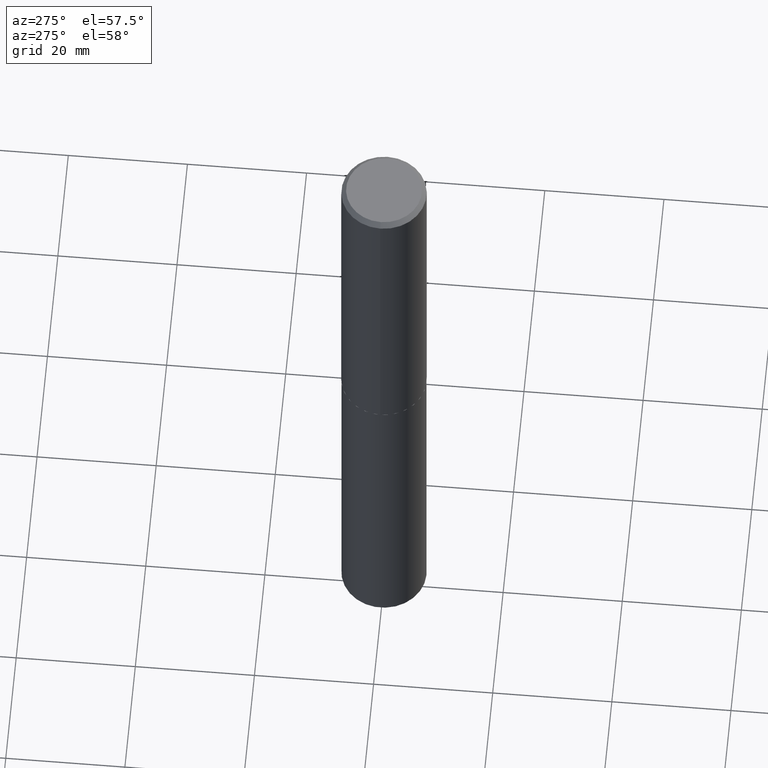
[diagram: clean part render]
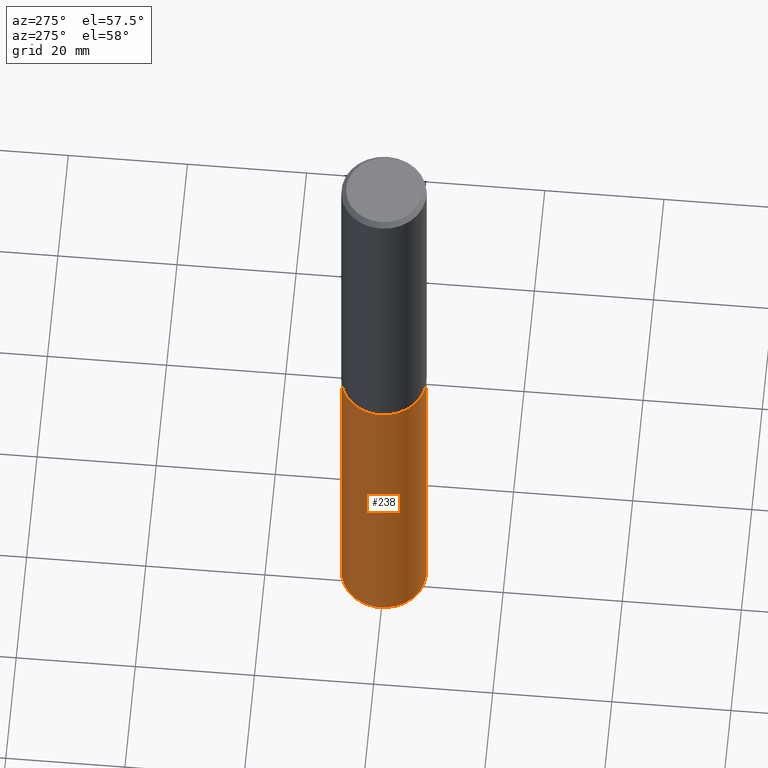
[diagram: same view with one face highlighted and labeled with its STEP entity id]
A machine part, auxiliary view. The second image highlights one B-rep face of the part: STEP entity #238.
In plain terms, the highlighted cylindrical surface (partial cylindrical patch) has radius 7.1437 mm, axis along (-0, 0, 1).
Its self-contained STEP definition (entity closure, byte-faithful):
#8 = LINE ( 'NONE', #282, #169 ) ;
#13 = VERTEX_POINT ( 'NONE', #80 ) ;
#15 = VERTEX_POINT ( 'NONE', #199 ) ;
#28 = ORIENTED_EDGE ( 'NONE', *, *, #97, .T. ) ;
#29 = DIRECTION ( 'NONE',  ( -6.982962677686266711E-15, -1.000000000000000000, 3.885294924322507688E-15 ) ) ;
#40 = CIRCLE ( 'NONE', #267, 0.2812500000000000000 ) ;
#50 = FACE_OUTER_BOUND ( 'NONE', #198, .T. ) ;
#71 = CYLINDRICAL_SURFACE ( 'NONE', #333, 0.2812500000000000000 ) ;
#73 = EDGE_CURVE ( 'NONE', #150, #13, #191, .T. ) ;
#80 = CARTESIAN_POINT ( 'NONE',  ( 1.998401444325396158E-15, 0.2812499999999919509, -2.312500000000000888 ) ) ;
#91 = CARTESIAN_POINT ( 'NONE',  ( 1.998401444325338176E-15, 0.2812499999999919509, -2.312500000000000888 ) ) ;
#97 = EDGE_CURVE ( 'NONE', #150, #236, #280, .T. ) ;
#108 = ORIENTED_EDGE ( 'NONE', *, *, #109, .F. ) ;
#109 = EDGE_CURVE ( 'NONE', #13, #15, #40, .T. ) ;
#110 = DIRECTION ( 'NONE',  ( -6.982962677686266711E-15, -1.000000000000000000, 3.885294924322507688E-15 ) ) ;
#116 = DIRECTION ( 'NONE',  ( -2.447055092570112405E-29, 3.489209686454046376E-15, 1.000000000000000000 ) ) ;
#126 = CARTESIAN_POINT ( 'NONE',  ( 1.143543159234910269E-28, -1.631604988620107915E-14, -4.674639289628747640 ) ) ;
#150 = VERTEX_POINT ( 'NONE', #340 ) ;
#163 = CARTESIAN_POINT ( 'NONE',  ( 5.655146614303128380E-29, -8.074050596074775072E-15, -2.312500000000000000 ) ) ;
#169 = VECTOR ( 'NONE', #366, 39.37007874015748143 ) ;
#191 = LINE ( 'NONE', #91, #232 ) ;
#198 = EDGE_LOOP ( 'NONE', ( #346, #28, #360, #108 ) ) ;
#199 = CARTESIAN_POINT ( 'NONE',  ( -1.963958253099205714E-15, -0.2812500000000080491, -2.312499999999999112 ) ) ;
#206 = EDGE_CURVE ( 'NONE', #236, #15, #8, .T. ) ;
#211 = CARTESIAN_POINT ( 'NONE',  ( 5.655146614303128380E-29, -8.074050596074775072E-15, -2.312500000000000000 ) ) ;
#224 = CARTESIAN_POINT ( 'NONE',  ( -1.963958253099148128E-15, -0.2812500000000163203, -4.674639289628746752 ) ) ;
#232 = VECTOR ( 'NONE', #308, 39.37007874015748143 ) ;
#236 = VERTEX_POINT ( 'NONE', #224 ) ;
#238 = ADVANCED_FACE ( 'NONE', ( #50 ), #71, .T. ) ;
#250 = DIRECTION ( 'NONE',  ( -6.982962677686266711E-15, -1.000000000000000000, 3.885294924322507688E-15 ) ) ;
#262 = AXIS2_PLACEMENT_3D ( 'NONE', #126, #116, #29 ) ;
#267 = AXIS2_PLACEMENT_3D ( 'NONE', #211, #315, #250 ) ;
#280 = CIRCLE ( 'NONE', #262, 0.2812500000000000000 ) ;
#282 = CARTESIAN_POINT ( 'NONE',  ( -1.963958253099205714E-15, -0.2812500000000080491, -2.312499999999999112 ) ) ;
#308 = DIRECTION ( 'NONE',  ( -2.447055092570112405E-29, 3.489209686454046771E-15, 1.000000000000000000 ) ) ;
#315 = DIRECTION ( 'NONE',  ( -2.447055092570112405E-29, 3.489209686454046376E-15, 1.000000000000000000 ) ) ;
#333 = AXIS2_PLACEMENT_3D ( 'NONE', #163, #371, #110 ) ;
#340 = CARTESIAN_POINT ( 'NONE',  ( 1.998401444325395763E-15, 0.2812499999999836242, -4.674639289628748529 ) ) ;
#346 = ORIENTED_EDGE ( 'NONE', *, *, #73, .F. ) ;
#360 = ORIENTED_EDGE ( 'NONE', *, *, #206, .T. ) ;
#366 = DIRECTION ( 'NONE',  ( -2.447055092570112405E-29, 3.489209686454046771E-15, 1.000000000000000000 ) ) ;
#371 = DIRECTION ( 'NONE',  ( -2.447055092570112405E-29, 3.489209686454046376E-15, 1.000000000000000000 ) ) ;